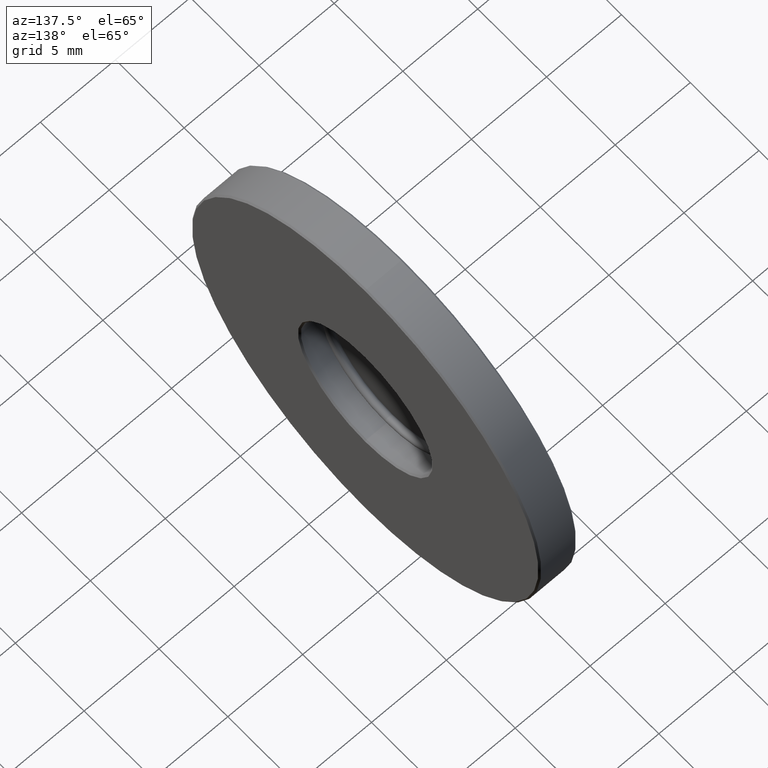
[diagram: clean part render]
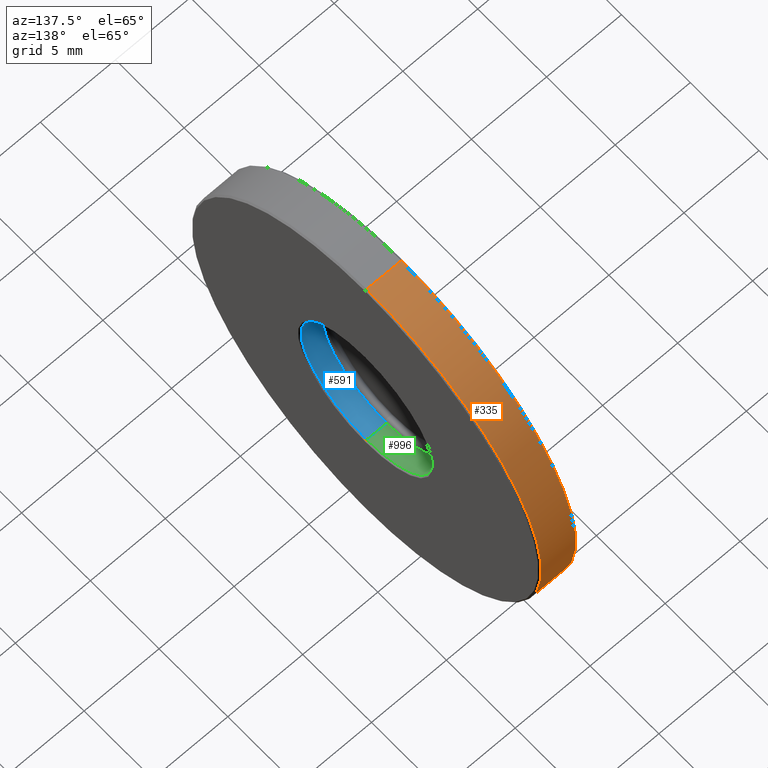
[diagram: same view with three faces highlighted in distinct colors, each labeled with its STEP entity id]
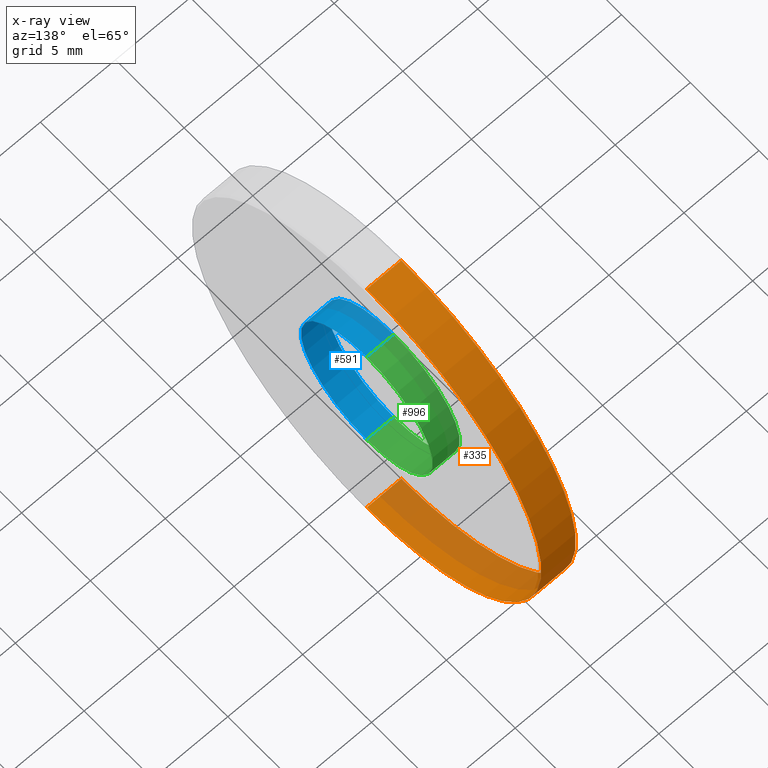
[diagram: x-ray of the same camera — body ghosted, the three highlighted faces saturated]
A machine part, auxiliary view with three faces highlighted in distinct colors.
The next image is the same camera in x-ray (body ghosted, the three faces saturated) — at least one of them is partly hidden behind the body in this view.
Their STEP definitions:

[orange] entity #335 — the highlighted cylindrical surface (partial cylindrical patch) has radius 12.7 mm, axis along (-1, 0, 0).
#81 = ORIENTED_EDGE ( 'NONE', *, *, #461, .F. ) ;
#128 = AXIS2_PLACEMENT_3D ( 'NONE', #1222, #746, #330 ) ;
#174 = ORIENTED_EDGE ( 'NONE', *, *, #453, .T. ) ;
#187 = VERTEX_POINT ( 'NONE', #1166 ) ;
#239 = LINE ( 'NONE', #671, #475 ) ;
#295 = AXIS2_PLACEMENT_3D ( 'NONE', #1112, #778, #1232 ) ;
#296 = AXIS2_PLACEMENT_3D ( 'NONE', #466, #899, #803 ) ;
#330 = DIRECTION ( 'NONE',  ( 0.000000000000000000, 0.000000000000000000, -1.000000000000000000 ) ) ;
#335 = ADVANCED_FACE ( 'NONE', ( #1096 ), #557, .T. ) ;
#381 = CARTESIAN_POINT ( 'NONE',  ( -4.834863851252999112, 1.436758841085001626, 12.69999999999999929 ) ) ;
#424 = ORIENTED_EDGE ( 'NONE', *, *, #1098, .T. ) ;
#445 = EDGE_CURVE ( 'NONE', #929, #538, #784, .T. ) ;
#453 = EDGE_CURVE ( 'NONE', #652, #929, #747, .T. ) ;
#461 = EDGE_CURVE ( 'NONE', #652, #187, #239, .T. ) ;
#466 = CARTESIAN_POINT ( 'NONE',  ( -2.534863851253000178, 1.436758841085000071, 25.39999999999999858 ) ) ;
#475 = VECTOR ( 'NONE', #1107, 1000.000000000000000 ) ;
#538 = VERTEX_POINT ( 'NONE', #381 ) ;
#546 = CARTESIAN_POINT ( 'NONE',  ( -2.534863851253000178, 1.436758841085001626, 12.69999999999999929 ) ) ;
#557 = CYLINDRICAL_SURFACE ( 'NONE', #295, 12.69999999999999574 ) ;
#570 = CIRCLE ( 'NONE', #128, 12.69999999999999929 ) ;
#652 = VERTEX_POINT ( 'NONE', #1070 ) ;
#671 = CARTESIAN_POINT ( 'NONE',  ( -2.434863851252999645, 1.436758841085000071, 38.09999999999999432 ) ) ;
#698 = CARTESIAN_POINT ( 'NONE',  ( -2.434863851252999645, 1.436758841085001626, 12.69999999999999929 ) ) ;
#746 = DIRECTION ( 'NONE',  ( 1.000000000000000000, 0.000000000000000000, 0.000000000000000000 ) ) ;
#747 = CIRCLE ( 'NONE', #296, 12.69999999999999929 ) ;
#778 = DIRECTION ( 'NONE',  ( -1.000000000000000000, 0.000000000000000000, 0.000000000000000000 ) ) ;
#784 = LINE ( 'NONE', #698, #1369 ) ;
#796 = DIRECTION ( 'NONE',  ( -1.000000000000000000, 0.000000000000000000, 0.000000000000000000 ) ) ;
#803 = DIRECTION ( 'NONE',  ( 0.000000000000000000, 0.000000000000000000, -1.000000000000000000 ) ) ;
#824 = ORIENTED_EDGE ( 'NONE', *, *, #445, .T. ) ;
#899 = DIRECTION ( 'NONE',  ( -1.000000000000000000, 0.000000000000000000, 0.000000000000000000 ) ) ;
#929 = VERTEX_POINT ( 'NONE', #546 ) ;
#1070 = CARTESIAN_POINT ( 'NONE',  ( -2.534863851253000178, 1.436758841085000071, 38.09999999999999432 ) ) ;
#1096 = FACE_OUTER_BOUND ( 'NONE', #1137, .T. ) ;
#1098 = EDGE_CURVE ( 'NONE', #538, #187, #570, .T. ) ;
#1107 = DIRECTION ( 'NONE',  ( -1.000000000000000000, 0.000000000000000000, 0.000000000000000000 ) ) ;
#1112 = CARTESIAN_POINT ( 'NONE',  ( -2.434863851252999645, 1.436758841085000071, 25.39999999999999858 ) ) ;
#1137 = EDGE_LOOP ( 'NONE', ( #174, #824, #424, #81 ) ) ;
#1166 = CARTESIAN_POINT ( 'NONE',  ( -4.834863851252999112, 1.436758841085000071, 38.09999999999999432 ) ) ;
#1222 = CARTESIAN_POINT ( 'NONE',  ( -4.834863851252999112, 1.436758841085000071, 25.39999999999999858 ) ) ;
#1232 = DIRECTION ( 'NONE',  ( 0.000000000000000000, 0.000000000000000000, 1.000000000000000000 ) ) ;
#1369 = VECTOR ( 'NONE', #796, 1000.000000000000000 ) ;

[blue] entity #591 — the highlighted cylindrical surface (partial cylindrical patch) has radius 4.8 mm, axis along (1, 0, 0).
#48 = LINE ( 'NONE', #797, #789 ) ;
#76 = CARTESIAN_POINT ( 'NONE',  ( -4.334863851253000000, 1.436758841085000071, 20.60000000000000142 ) ) ;
#96 = DIRECTION ( 'NONE',  ( 0.000000000000000000, 0.000000000000000000, -1.000000000000000000 ) ) ;
#118 = AXIS2_PLACEMENT_3D ( 'NONE', #534, #1169, #1288 ) ;
#119 = CARTESIAN_POINT ( 'NONE',  ( -18.51131405003469865, 1.436758841085000071, 20.60000000000000142 ) ) ;
#159 = EDGE_CURVE ( 'NONE', #701, #1024, #744, .T. ) ;
#182 = VECTOR ( 'NONE', #541, 1000.000000000000000 ) ;
#221 = ORIENTED_EDGE ( 'NONE', *, *, #531, .T. ) ;
#263 = FACE_OUTER_BOUND ( 'NONE', #965, .T. ) ;
#288 = DIRECTION ( 'NONE',  ( 1.000000000000000000, 0.000000000000000000, 0.000000000000000000 ) ) ;
#531 = EDGE_CURVE ( 'NONE', #616, #701, #48, .T. ) ;
#534 = CARTESIAN_POINT ( 'NONE',  ( -4.334863851253000000, 1.436758841085000071, 25.39999999999999858 ) ) ;
#541 = DIRECTION ( 'NONE',  ( 1.000000000000000000, 0.000000000000000000, 0.000000000000000000 ) ) ;
#554 = ORIENTED_EDGE ( 'NONE', *, *, #159, .T. ) ;
#591 = ADVANCED_FACE ( 'NONE', ( #263 ), #706, .F. ) ;
#608 = EDGE_CURVE ( 'NONE', #616, #942, #840, .T. ) ;
#616 = VERTEX_POINT ( 'NONE', #967 ) ;
#660 = LINE ( 'NONE', #119, #182 ) ;
#701 = VERTEX_POINT ( 'NONE', #1295 ) ;
#706 = CYLINDRICAL_SURFACE ( 'NONE', #935, 4.799999999999998934 ) ;
#744 = CIRCLE ( 'NONE', #930, 4.799999999999998934 ) ;
#789 = VECTOR ( 'NONE', #1130, 1000.000000000000000 ) ;
#797 = CARTESIAN_POINT ( 'NONE',  ( -18.51131405003469865, 1.436758841085000737, 30.19999999999999929 ) ) ;
#840 = CIRCLE ( 'NONE', #118, 4.799999999999998934 ) ;
#895 = EDGE_CURVE ( 'NONE', #942, #1024, #660, .T. ) ;
#919 = CARTESIAN_POINT ( 'NONE',  ( -2.534863851253000178, 1.436758841085000071, 20.60000000000000142 ) ) ;
#930 = AXIS2_PLACEMENT_3D ( 'NONE', #1034, #288, #1176 ) ;
#935 = AXIS2_PLACEMENT_3D ( 'NONE', #1063, #1283, #96 ) ;
#942 = VERTEX_POINT ( 'NONE', #76 ) ;
#965 = EDGE_LOOP ( 'NONE', ( #980, #221, #554, #1367 ) ) ;
#967 = CARTESIAN_POINT ( 'NONE',  ( -4.334863851253000000, 1.436758841085000737, 30.19999999999999929 ) ) ;
#980 = ORIENTED_EDGE ( 'NONE', *, *, #608, .F. ) ;
#1024 = VERTEX_POINT ( 'NONE', #919 ) ;
#1034 = CARTESIAN_POINT ( 'NONE',  ( -2.534863851253000178, 1.436758841085000071, 25.39999999999999858 ) ) ;
#1063 = CARTESIAN_POINT ( 'NONE',  ( -18.51131405003469865, 1.436758841085000071, 25.39999999999999858 ) ) ;
#1130 = DIRECTION ( 'NONE',  ( 1.000000000000000000, 0.000000000000000000, 0.000000000000000000 ) ) ;
#1169 = DIRECTION ( 'NONE',  ( 1.000000000000000000, 0.000000000000000000, 0.000000000000000000 ) ) ;
#1176 = DIRECTION ( 'NONE',  ( 0.000000000000000000, 0.000000000000000000, -1.000000000000000000 ) ) ;
#1283 = DIRECTION ( 'NONE',  ( 1.000000000000000000, 0.000000000000000000, 0.000000000000000000 ) ) ;
#1288 = DIRECTION ( 'NONE',  ( 0.000000000000000000, 0.000000000000000000, -1.000000000000000000 ) ) ;
#1295 = CARTESIAN_POINT ( 'NONE',  ( -2.534863851253000178, 1.436758841085000737, 30.19999999999999929 ) ) ;
#1367 = ORIENTED_EDGE ( 'NONE', *, *, #895, .F. ) ;

[green] entity #996 — the highlighted cylindrical surface (partial cylindrical patch) has radius 4.8 mm, axis along (1, 0, 0).
#48 = LINE ( 'NONE', #797, #789 ) ;
#76 = CARTESIAN_POINT ( 'NONE',  ( -4.334863851253000000, 1.436758841085000071, 20.60000000000000142 ) ) ;
#119 = CARTESIAN_POINT ( 'NONE',  ( -18.51131405003469865, 1.436758841085000071, 20.60000000000000142 ) ) ;
#153 = DIRECTION ( 'NONE',  ( 1.000000000000000000, 0.000000000000000000, 0.000000000000000000 ) ) ;
#182 = VECTOR ( 'NONE', #541, 1000.000000000000000 ) ;
#193 = AXIS2_PLACEMENT_3D ( 'NONE', #1279, #269, #292 ) ;
#204 = CIRCLE ( 'NONE', #787, 4.799999999999998934 ) ;
#269 = DIRECTION ( 'NONE',  ( 1.000000000000000000, 0.000000000000000000, 0.000000000000000000 ) ) ;
#277 = DIRECTION ( 'NONE',  ( 1.000000000000000000, 0.000000000000000000, 0.000000000000000000 ) ) ;
#292 = DIRECTION ( 'NONE',  ( 0.000000000000000000, 0.000000000000000000, -1.000000000000000000 ) ) ;
#367 = CARTESIAN_POINT ( 'NONE',  ( -2.534863851253000178, 1.436758841085000071, 25.39999999999999858 ) ) ;
#378 = ORIENTED_EDGE ( 'NONE', *, *, #411, .T. ) ;
#385 = ORIENTED_EDGE ( 'NONE', *, *, #1016, .F. ) ;
#411 = EDGE_CURVE ( 'NONE', #1024, #701, #204, .T. ) ;
#531 = EDGE_CURVE ( 'NONE', #616, #701, #48, .T. ) ;
#541 = DIRECTION ( 'NONE',  ( 1.000000000000000000, 0.000000000000000000, 0.000000000000000000 ) ) ;
#576 = AXIS2_PLACEMENT_3D ( 'NONE', #1181, #277, #1154 ) ;
#616 = VERTEX_POINT ( 'NONE', #967 ) ;
#660 = LINE ( 'NONE', #119, #182 ) ;
#701 = VERTEX_POINT ( 'NONE', #1295 ) ;
#725 = FACE_OUTER_BOUND ( 'NONE', #1150, .T. ) ;
#787 = AXIS2_PLACEMENT_3D ( 'NONE', #367, #153, #1245 ) ;
#789 = VECTOR ( 'NONE', #1130, 1000.000000000000000 ) ;
#797 = CARTESIAN_POINT ( 'NONE',  ( -18.51131405003469865, 1.436758841085000737, 30.19999999999999929 ) ) ;
#895 = EDGE_CURVE ( 'NONE', #942, #1024, #660, .T. ) ;
#919 = CARTESIAN_POINT ( 'NONE',  ( -2.534863851253000178, 1.436758841085000071, 20.60000000000000142 ) ) ;
#942 = VERTEX_POINT ( 'NONE', #76 ) ;
#967 = CARTESIAN_POINT ( 'NONE',  ( -4.334863851253000000, 1.436758841085000737, 30.19999999999999929 ) ) ;
#996 = ADVANCED_FACE ( 'NONE', ( #725 ), #1173, .F. ) ;
#1016 = EDGE_CURVE ( 'NONE', #942, #616, #1109, .T. ) ;
#1024 = VERTEX_POINT ( 'NONE', #919 ) ;
#1088 = ORIENTED_EDGE ( 'NONE', *, *, #895, .T. ) ;
#1109 = CIRCLE ( 'NONE', #193, 4.799999999999998934 ) ;
#1130 = DIRECTION ( 'NONE',  ( 1.000000000000000000, 0.000000000000000000, 0.000000000000000000 ) ) ;
#1150 = EDGE_LOOP ( 'NONE', ( #1357, #385, #1088, #378 ) ) ;
#1154 = DIRECTION ( 'NONE',  ( 0.000000000000000000, 0.000000000000000000, -1.000000000000000000 ) ) ;
#1173 = CYLINDRICAL_SURFACE ( 'NONE', #576, 4.799999999999998934 ) ;
#1181 = CARTESIAN_POINT ( 'NONE',  ( -18.51131405003469865, 1.436758841085000071, 25.39999999999999858 ) ) ;
#1245 = DIRECTION ( 'NONE',  ( 0.000000000000000000, 0.000000000000000000, -1.000000000000000000 ) ) ;
#1279 = CARTESIAN_POINT ( 'NONE',  ( -4.334863851253000000, 1.436758841085000071, 25.39999999999999858 ) ) ;
#1295 = CARTESIAN_POINT ( 'NONE',  ( -2.534863851253000178, 1.436758841085000737, 30.19999999999999929 ) ) ;
#1357 = ORIENTED_EDGE ( 'NONE', *, *, #531, .F. ) ;